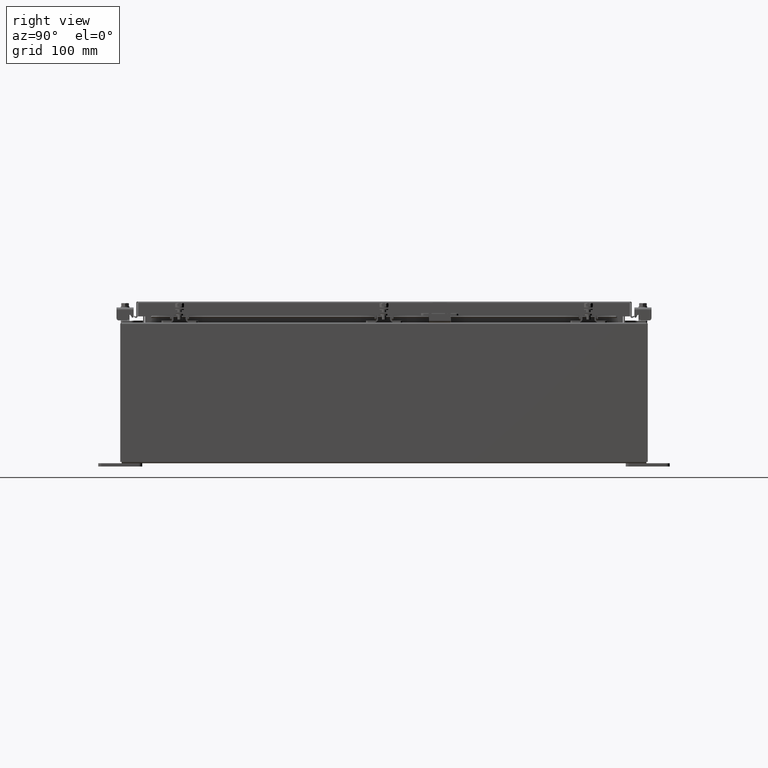
[diagram: clean part render]
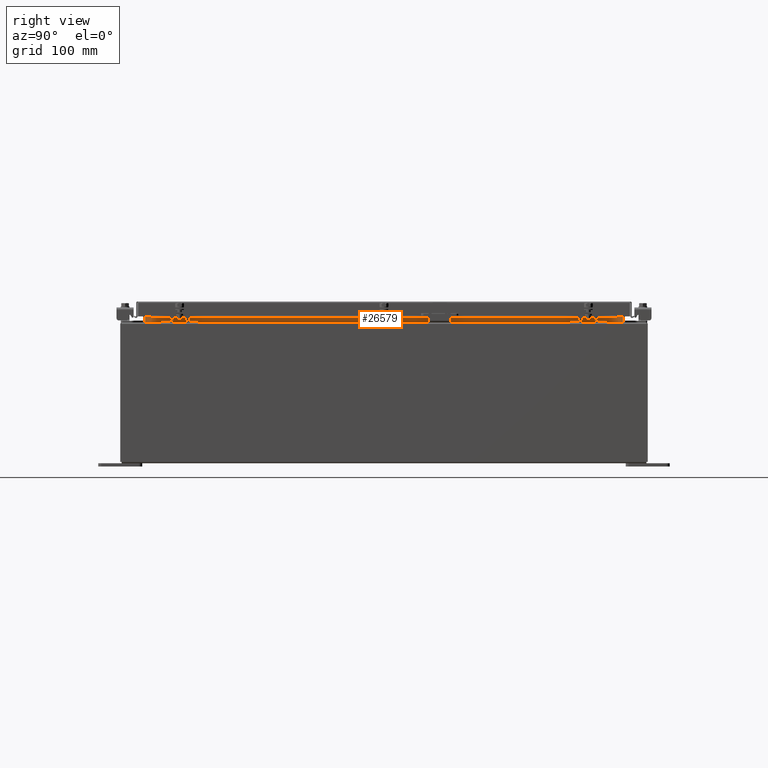
[diagram: same view with one face highlighted and labeled with its STEP entity id]
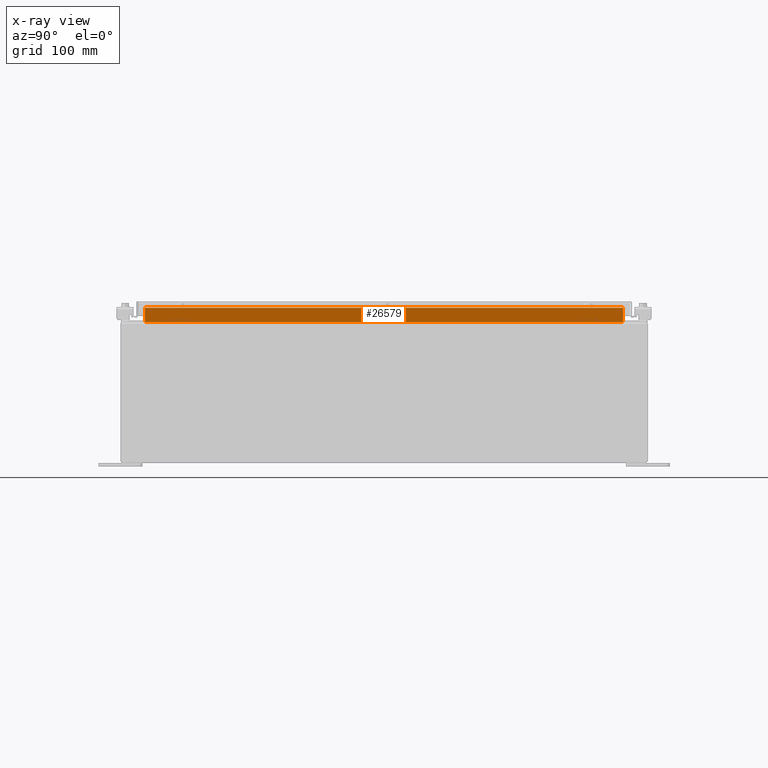
[diagram: x-ray of the same camera — body ghosted, the highlighted face saturated]
A machine part, right view. The second image highlights one B-rep face of the part: STEP entity #26579.
The next image is the same camera in x-ray: the body ghosted, the highlighted face saturated — about 0% of this face is hidden behind the body in this view.
In plain terms, the highlighted planar face has unit normal (1, 0, -0).
Its self-contained STEP definition (entity closure, byte-faithful):
#67 = VECTOR ( 'NONE', #9135, 39.37007874015748100 ) ;
#1430 = VERTEX_POINT ( 'NONE', #20289 ) ;
#2203 = EDGE_LOOP ( 'NONE', ( #16628, #28166, #3309, #7340 ) ) ;
#3303 = CARTESIAN_POINT ( 'NONE',  ( 10.69970000000002500, 13.59375000000000200, 7.925300000000007100 ) ) ;
#3309 = ORIENTED_EDGE ( 'NONE', *, *, #34421, .F. ) ;
#6152 = CARTESIAN_POINT ( 'NONE',  ( 10.69970000000002500, 13.59375000000000400, 7.938300000000009700 ) ) ;
#6309 = CARTESIAN_POINT ( 'NONE',  ( 10.69970000000002800, -13.59375000000000200, 8.850600000000007100 ) ) ;
#6648 = CARTESIAN_POINT ( 'NONE',  ( 10.69970000000002800, 13.59375000000000200, 8.762900000000007200 ) ) ;
#7340 = ORIENTED_EDGE ( 'NONE', *, *, #36097, .F. ) ;
#8207 = FACE_OUTER_BOUND ( 'NONE', #2203, .T. ) ;
#9135 = DIRECTION ( 'NONE',  ( -2.361913319930196000E-015, -0.0000000000000000000, -1.000000000000000000 ) ) ;
#9259 = DIRECTION ( 'NONE',  ( 2.361913319930201500E-015, -0.0000000000000000000, 1.000000000000000000 ) ) ;
#11417 = DIRECTION ( 'NONE',  ( 1.000000000000000000, 0.0000000000000000000, -2.361913319930196000E-015 ) ) ;
#12096 = EDGE_CURVE ( 'NONE', #1430, #19355, #18823, .T. ) ;
#12531 = DIRECTION ( 'NONE',  ( 0.0000000000000000000, 1.000000000000000000, 0.0000000000000000000 ) ) ;
#13373 = EDGE_CURVE ( 'NONE', #19355, #33110, #29937, .T. ) ;
#14692 = LINE ( 'NONE', #22770, #20601 ) ;
#16628 = ORIENTED_EDGE ( 'NONE', *, *, #13373, .F. ) ;
#17161 = PLANE ( 'NONE',  #20807 ) ;
#17916 = VECTOR ( 'NONE', #12531, 39.37007874015748100 ) ;
#18823 = LINE ( 'NONE', #21174, #17916 ) ;
#19355 = VERTEX_POINT ( 'NONE', #6648 ) ;
#20289 = CARTESIAN_POINT ( 'NONE',  ( 10.69970000000002800, -13.59375000000000200, 8.762900000000007200 ) ) ;
#20601 = VECTOR ( 'NONE', #25677, 39.37007874015748100 ) ;
#20807 = AXIS2_PLACEMENT_3D ( 'NONE', #28721, #11417, #31608 ) ;
#21174 = CARTESIAN_POINT ( 'NONE',  ( 10.69970000000002800, -13.59375000000000200, 8.762900000000007200 ) ) ;
#21178 = LINE ( 'NONE', #6309, #27887 ) ;
#22770 = CARTESIAN_POINT ( 'NONE',  ( 10.69970000000002500, 13.59375000000000200, 7.938300000000007900 ) ) ;
#25677 = DIRECTION ( 'NONE',  ( 8.038541222736220000E-017, -1.000000000000000000, 1.607708244547244000E-016 ) ) ;
#25953 = VERTEX_POINT ( 'NONE', #37349 ) ;
#26579 = ADVANCED_FACE ( 'NONE', ( #8207 ), #17161, .T. ) ;
#27887 = VECTOR ( 'NONE', #9259, 39.37007874015748100 ) ;
#28166 = ORIENTED_EDGE ( 'NONE', *, *, #12096, .F. ) ;
#28721 = CARTESIAN_POINT ( 'NONE',  ( 10.69970000000000500, 0.0000000000000000000, -2.527176394925713500E-014 ) ) ;
#29937 = LINE ( 'NONE', #3303, #67 ) ;
#31608 = DIRECTION ( 'NONE',  ( -2.361913319930196000E-015, 0.0000000000000000000, -1.000000000000000000 ) ) ;
#33110 = VERTEX_POINT ( 'NONE', #6152 ) ;
#34421 = EDGE_CURVE ( 'NONE', #25953, #1430, #21178, .T. ) ;
#36097 = EDGE_CURVE ( 'NONE', #33110, #25953, #14692, .T. ) ;
#37349 = CARTESIAN_POINT ( 'NONE',  ( 10.69970000000002500, -13.59375000000000400, 7.938300000000009700 ) ) ;